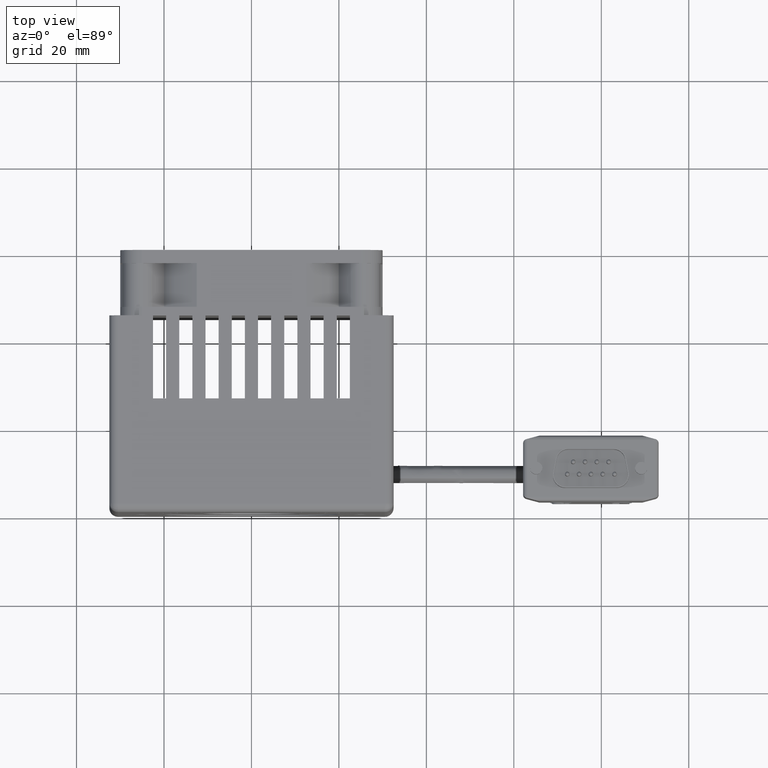
[diagram: clean part render]
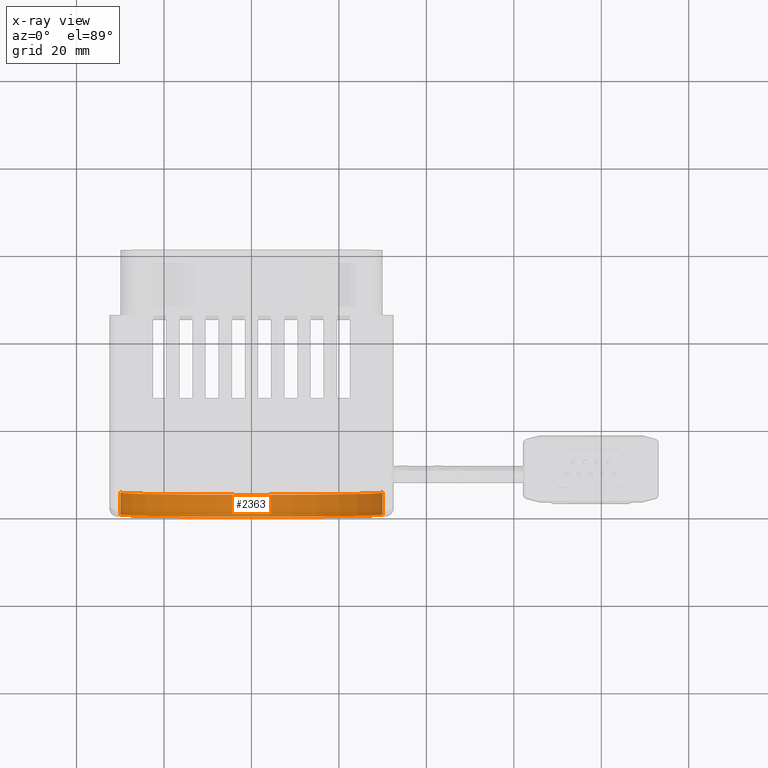
[diagram: x-ray — body ghosted, one internal face saturated and labeled with its STEP entity id]
A machine part, top view, then the same camera in x-ray: the body is ghosted and one INTERNAL B-rep face — a face not visible from any outside direction — is saturated and labeled: STEP entity #2363.
In plain terms, the highlighted cylindrical surface (partial cylindrical patch) has radius 30 mm, axis along (0, 1, 0).
Its self-contained STEP definition (entity closure, byte-faithful):
#1261 = CYLINDRICAL_SURFACE ( 'NONE', #14613, 30.00000000000000000 ) ;
#2344 = DIRECTION ( 'NONE',  ( 0.000000000000000000, 1.000000000000000000, 0.000000000000000000 ) ) ;
#2363 = ADVANCED_FACE ( 'NONE', ( #6950 ), #1261, .F. ) ;
#2544 = LINE ( 'NONE', #28244, #18828 ) ;
#3287 = DIRECTION ( 'NONE',  ( 0.000000000000000000, 1.000000000000000000, 0.000000000000000000 ) ) ;
#4000 = DIRECTION ( 'NONE',  ( -1.000000000000000000, 0.000000000000000000, -1.456030196229709689E-16 ) ) ;
#5961 = CIRCLE ( 'NONE', #36903, 30.00000000000000000 ) ;
#6950 = FACE_OUTER_BOUND ( 'NONE', #35207, .T. ) ;
#8356 = CARTESIAN_POINT ( 'NONE',  ( 0.000000000000000000, 0.000000000000000000, 0.000000000000000000 ) ) ;
#8413 = VERTEX_POINT ( 'NONE', #31936 ) ;
#10408 = ORIENTED_EDGE ( 'NONE', *, *, #14284, .T. ) ;
#10781 = EDGE_CURVE ( 'NONE', #35683, #8413, #5961, .T. ) ;
#11904 = DIRECTION ( 'NONE',  ( 0.000000000000000000, 1.000000000000000000, 0.000000000000000000 ) ) ;
#13236 = ORIENTED_EDGE ( 'NONE', *, *, #19329, .T. ) ;
#13439 = VECTOR ( 'NONE', #16414, 1000.000000000000000 ) ;
#14099 = CARTESIAN_POINT ( 'NONE',  ( 0.000000000000000000, 0.000000000000000000, 0.000000000000000000 ) ) ;
#14175 = EDGE_CURVE ( 'NONE', #8413, #30403, #2544, .T. ) ;
#14284 = EDGE_CURVE ( 'NONE', #35683, #22093, #15601, .T. ) ;
#14320 = CARTESIAN_POINT ( 'NONE',  ( 30.00000000000000000, 5.000000000000000000, 8.042030986131186370E-15 ) ) ;
#14613 = AXIS2_PLACEMENT_3D ( 'NONE', #14099, #20013, #4000 ) ;
#14655 = CIRCLE ( 'NONE', #31452, 30.00000000000000000 ) ;
#15601 = LINE ( 'NONE', #41279, #13439 ) ;
#16353 = ORIENTED_EDGE ( 'NONE', *, *, #14175, .F. ) ;
#16414 = DIRECTION ( 'NONE',  ( 0.000000000000000000, 1.000000000000000000, 0.000000000000000000 ) ) ;
#17577 = CARTESIAN_POINT ( 'NONE',  ( 30.00000000000000000, 0.000000000000000000, 8.042030986131186370E-15 ) ) ;
#18828 = VECTOR ( 'NONE', #2344, 1000.000000000000000 ) ;
#19329 = EDGE_CURVE ( 'NONE', #22093, #30403, #14655, .T. ) ;
#20013 = DIRECTION ( 'NONE',  ( 0.000000000000000000, 1.000000000000000000, 0.000000000000000000 ) ) ;
#22093 = VERTEX_POINT ( 'NONE', #14320 ) ;
#25817 = CARTESIAN_POINT ( 'NONE',  ( 0.000000000000000000, 5.000000000000000000, 0.000000000000000000 ) ) ;
#26279 = ORIENTED_EDGE ( 'NONE', *, *, #10781, .F. ) ;
#27722 = CARTESIAN_POINT ( 'NONE',  ( -30.00000000000000000, 5.000000000000000000, -4.368090588689128770E-15 ) ) ;
#28244 = CARTESIAN_POINT ( 'NONE',  ( -30.00000000000000000, 0.000000000000000000, -4.368090588689128770E-15 ) ) ;
#30403 = VERTEX_POINT ( 'NONE', #27722 ) ;
#31096 = DIRECTION ( 'NONE',  ( -1.000000000000000000, 0.000000000000000000, -1.456030196229709689E-16 ) ) ;
#31452 = AXIS2_PLACEMENT_3D ( 'NONE', #25817, #3287, #31928 ) ;
#31928 = DIRECTION ( 'NONE',  ( -1.000000000000000000, 0.000000000000000000, -1.456030196229709689E-16 ) ) ;
#31936 = CARTESIAN_POINT ( 'NONE',  ( -30.00000000000000000, 0.000000000000000000, -4.368090588689128770E-15 ) ) ;
#35207 = EDGE_LOOP ( 'NONE', ( #26279, #10408, #13236, #16353 ) ) ;
#35683 = VERTEX_POINT ( 'NONE', #17577 ) ;
#36903 = AXIS2_PLACEMENT_3D ( 'NONE', #8356, #11904, #31096 ) ;
#41279 = CARTESIAN_POINT ( 'NONE',  ( 30.00000000000000000, 0.000000000000000000, 8.042030986131186370E-15 ) ) ;